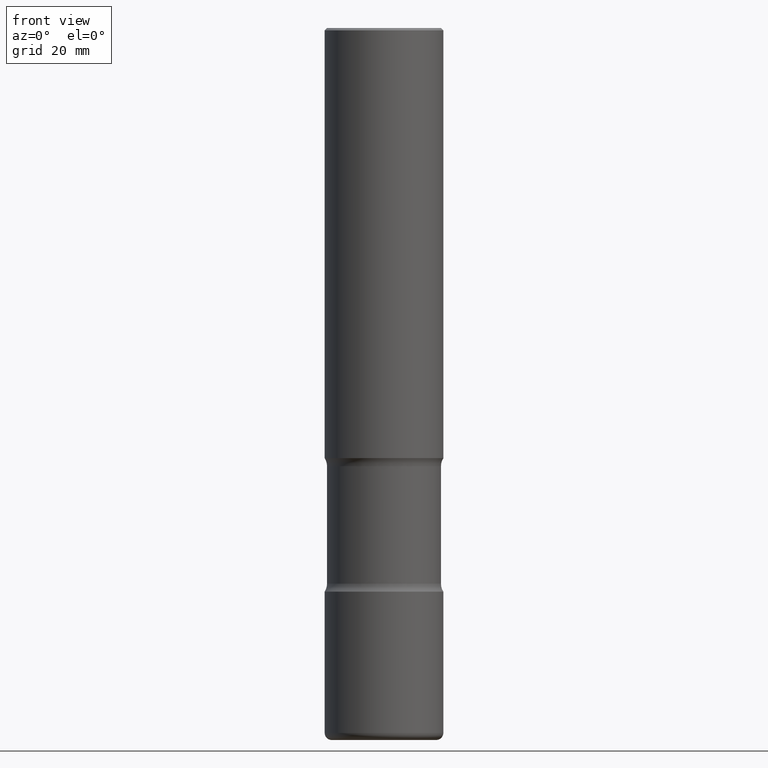
[diagram: clean part render]
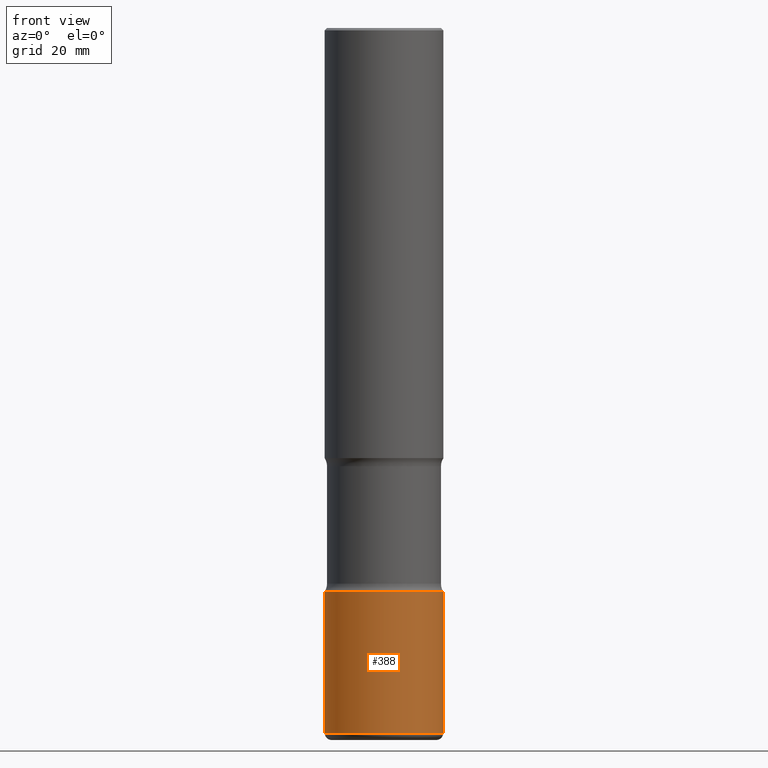
[diagram: same view with one face highlighted and labeled with its STEP entity id]
A machine part, front view. The second image highlights one B-rep face of the part: STEP entity #388.
In plain terms, the highlighted cylindrical surface (partial cylindrical patch) has radius 12.7 mm, axis along (-0, 0, 1).
Its self-contained STEP definition (entity closure, byte-faithful):
#19 = DIRECTION ( 'NONE',  ( -2.445468806185136597E-29, 3.491481338843145583E-15, 1.000000000000000000 ) ) ;
#28 = CARTESIAN_POINT ( 'NONE',  ( 0.5000000000000000000, -2.007601769834807675E-14, -4.750000000000000000 ) ) ;
#57 = VECTOR ( 'NONE', #636, 39.37007874015748143 ) ;
#81 = CARTESIAN_POINT ( 'NONE',  ( -0.5000000000000000000, -1.718668547392778504E-14, -5.940000000000000391 ) ) ;
#104 = DIRECTION ( 'NONE',  ( -2.445468806185136597E-29, 3.491481338843145583E-15, 1.000000000000000000 ) ) ;
#122 = ORIENTED_EDGE ( 'NONE', *, *, #238, .F. ) ;
#164 = VERTEX_POINT ( 'NONE', #28 ) ;
#206 = CYLINDRICAL_SURFACE ( 'NONE', #804, 0.5000000000000000000 ) ;
#238 = EDGE_CURVE ( 'NONE', #661, #164, #242, .T. ) ;
#239 = DIRECTION ( 'NONE',  ( -2.445468806185136597E-29, 3.491481338843145583E-15, 1.000000000000000000 ) ) ;
#242 = CIRCLE ( 'NONE', #705, 0.5000000000000000000 ) ;
#248 = EDGE_CURVE ( 'NONE', #488, #717, #498, .T. ) ;
#284 = CARTESIAN_POINT ( 'NONE',  ( 1.161597682937940108E-28, -1.658453635950494339E-14, -4.750000000000000000 ) ) ;
#297 = FACE_OUTER_BOUND ( 'NONE', #616, .T. ) ;
#301 = CARTESIAN_POINT ( 'NONE',  ( 0.5000000000000000000, -2.423088049157142248E-14, -5.940000000000000391 ) ) ;
#322 = VECTOR ( 'NONE', #734, 39.37007874015748143 ) ;
#326 = CARTESIAN_POINT ( 'NONE',  ( 0.5000000000000000000, -3.491481338843133355E-15, 2.438088387897967896E-29 ) ) ;
#375 = ORIENTED_EDGE ( 'NONE', *, *, #248, .T. ) ;
#385 = ORIENTED_EDGE ( 'NONE', *, *, #426, .T. ) ;
#386 = CARTESIAN_POINT ( 'NONE',  ( 0.000000000000000000, 0.000000000000000000, 0.000000000000000000 ) ) ;
#388 = ADVANCED_FACE ( 'NONE', ( #297 ), #206, .T. ) ;
#415 = ORIENTED_EDGE ( 'NONE', *, *, #722, .F. ) ;
#426 = EDGE_CURVE ( 'NONE', #717, #164, #456, .T. ) ;
#456 = LINE ( 'NONE', #326, #57 ) ;
#488 = VERTEX_POINT ( 'NONE', #81 ) ;
#490 = LINE ( 'NONE', #659, #322 ) ;
#498 = CIRCLE ( 'NONE', #536, 0.5000000000000000000 ) ;
#516 = CARTESIAN_POINT ( 'NONE',  ( -0.5000000000000000000, -1.510925407731611217E-14, -4.750000000000000000 ) ) ;
#531 = DIRECTION ( 'NONE',  ( 1.000000000000000000, -6.982962677686266711E-15, 0.000000000000000000 ) ) ;
#536 = AXIS2_PLACEMENT_3D ( 'NONE', #785, #104, #796 ) ;
#573 = DIRECTION ( 'NONE',  ( 1.000000000000000000, -6.982962677686266711E-15, 4.876176775795935793E-29 ) ) ;
#616 = EDGE_LOOP ( 'NONE', ( #415, #375, #385, #122 ) ) ;
#636 = DIRECTION ( 'NONE',  ( -2.445468806185136877E-29, 3.491481338843145188E-15, 1.000000000000000000 ) ) ;
#659 = CARTESIAN_POINT ( 'NONE',  ( -0.5000000000000000000, 3.552713678800500929E-15, -2.459467545127452891E-29 ) ) ;
#661 = VERTEX_POINT ( 'NONE', #516 ) ;
#705 = AXIS2_PLACEMENT_3D ( 'NONE', #284, #239, #531 ) ;
#717 = VERTEX_POINT ( 'NONE', #301 ) ;
#722 = EDGE_CURVE ( 'NONE', #488, #661, #490, .T. ) ;
#734 = DIRECTION ( 'NONE',  ( -2.445468806185136877E-29, 3.491481338843145188E-15, 1.000000000000000000 ) ) ;
#785 = CARTESIAN_POINT ( 'NONE',  ( 1.452608470873971255E-28, -2.073939915272828597E-14, -5.940000000000000391 ) ) ;
#796 = DIRECTION ( 'NONE',  ( 1.000000000000000000, -6.982962677686270655E-15, 0.000000000000000000 ) ) ;
#804 = AXIS2_PLACEMENT_3D ( 'NONE', #386, #19, #573 ) ;